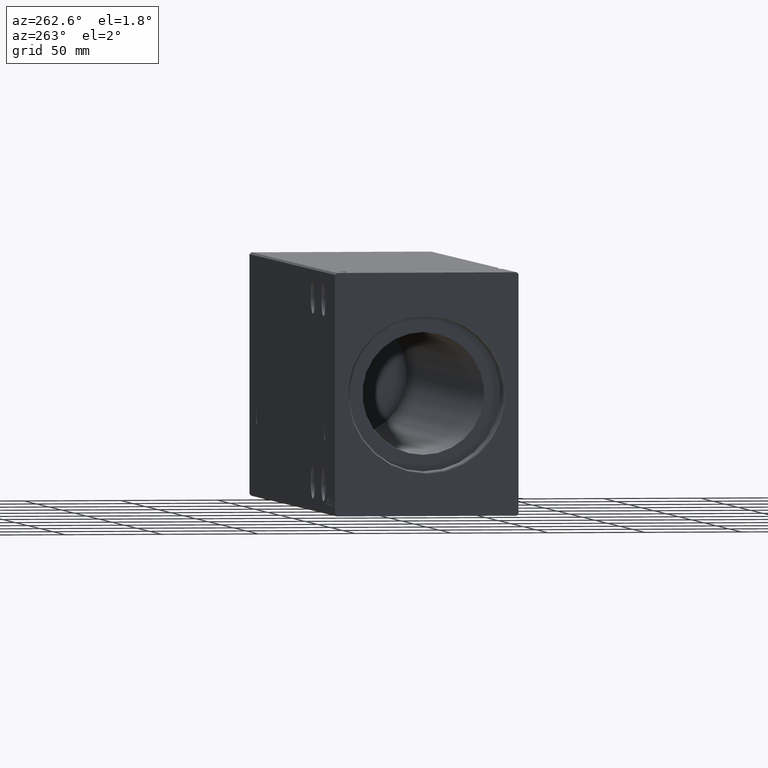
[diagram: clean part render]
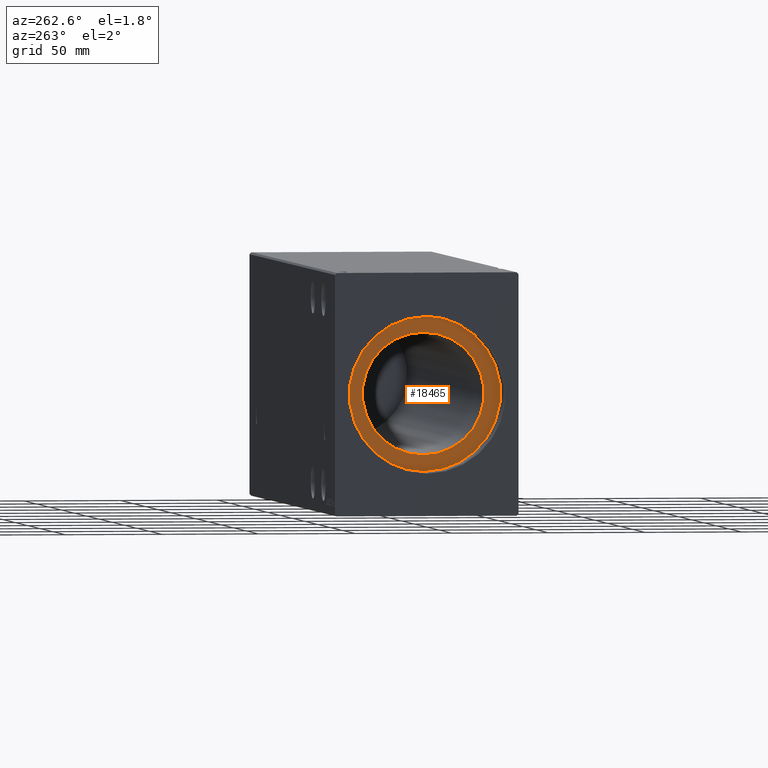
[diagram: same view with one face highlighted and labeled with its STEP entity id]
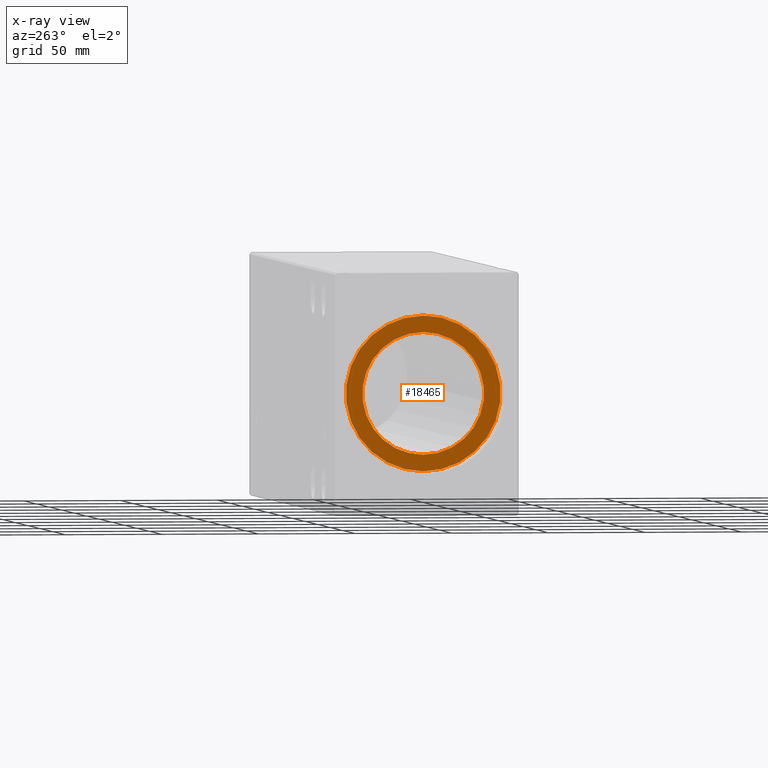
[diagram: x-ray of the same camera — body ghosted, the highlighted face saturated]
A machine part, auxiliary view. The second image highlights one B-rep face of the part: STEP entity #18465.
The next image is the same camera in x-ray: the body ghosted, the highlighted face saturated — about 0% of this face is hidden behind the body in this view.
In plain terms, the highlighted planar face has unit normal (-1, 0, 0).
Its self-contained STEP definition (entity closure, byte-faithful):
#2246 = ORIENTED_EDGE ( 'NONE', *, *, #28022, .F. ) ;
#2355 = CIRCLE ( 'NONE', #25432, 31.50000000000000000 ) ;
#4510 = DIRECTION ( 'NONE',  ( 0.000000000000000000, 0.000000000000000000, 1.000000000000000000 ) ) ;
#8304 = EDGE_CURVE ( 'NONE', #17586, #31667, #2355, .T. ) ;
#8354 = CARTESIAN_POINT ( 'NONE',  ( 14.00000000000001243, 3.857637417314162689E-15, -31.50000000000000000 ) ) ;
#8434 = DIRECTION ( 'NONE',  ( -1.000000000000000000, 0.000000000000000000, 0.000000000000000000 ) ) ;
#8858 = CARTESIAN_POINT ( 'NONE',  ( 14.00000000000000000, 0.000000000000000000, 0.000000000000000000 ) ) ;
#9059 = DIRECTION ( 'NONE',  ( 0.000000000000000000, 0.000000000000000000, 1.000000000000000000 ) ) ;
#9255 = DIRECTION ( 'NONE',  ( -1.000000000000000000, 0.000000000000000000, 0.000000000000000000 ) ) ;
#9878 = CARTESIAN_POINT ( 'NONE',  ( 14.00000000000000000, 4.898587196589413026E-15, -40.00000000000000000 ) ) ;
#11285 = DIRECTION ( 'NONE',  ( -1.000000000000000000, 0.000000000000000000, 0.000000000000000000 ) ) ;
#11724 = DIRECTION ( 'NONE',  ( 0.000000000000000000, 0.000000000000000000, 1.000000000000000000 ) ) ;
#12969 = DIRECTION ( 'NONE',  ( -1.000000000000000000, 0.000000000000000000, 0.000000000000000000 ) ) ;
#14682 = CIRCLE ( 'NONE', #37113, 40.00000000000000000 ) ;
#15761 = ORIENTED_EDGE ( 'NONE', *, *, #8304, .F. ) ;
#15959 = DIRECTION ( 'NONE',  ( 0.000000000000000000, 0.000000000000000000, 1.000000000000000000 ) ) ;
#17420 = EDGE_LOOP ( 'NONE', ( #2246, #15761 ) ) ;
#17586 = VERTEX_POINT ( 'NONE', #8354 ) ;
#17857 = ORIENTED_EDGE ( 'NONE', *, *, #19681, .T. ) ;
#18316 = DIRECTION ( 'NONE',  ( -1.000000000000000000, 0.000000000000000000, 0.000000000000000000 ) ) ;
#18413 = FACE_BOUND ( 'NONE', #17420, .T. ) ;
#18465 = ADVANCED_FACE ( 'NONE', ( #18413, #31385 ), #41172, .T. ) ;
#18473 = EDGE_LOOP ( 'NONE', ( #17857, #39286 ) ) ;
#19681 = EDGE_CURVE ( 'NONE', #22795, #39337, #14682, .T. ) ;
#20254 = CARTESIAN_POINT ( 'NONE',  ( 14.00000000000000000, 0.000000000000000000, 0.000000000000000000 ) ) ;
#20650 = CARTESIAN_POINT ( 'NONE',  ( 14.00000000000001243, 0.000000000000000000, 0.000000000000000000 ) ) ;
#22281 = CIRCLE ( 'NONE', #39965, 40.00000000000000000 ) ;
#22795 = VERTEX_POINT ( 'NONE', #26464 ) ;
#22810 = AXIS2_PLACEMENT_3D ( 'NONE', #8858, #8434, #9059 ) ;
#22834 = DIRECTION ( 'NONE',  ( 0.000000000000000000, 0.000000000000000000, 1.000000000000000000 ) ) ;
#25432 = AXIS2_PLACEMENT_3D ( 'NONE', #35310, #12969, #15959 ) ;
#26464 = CARTESIAN_POINT ( 'NONE',  ( 14.00000000000000000, 0.000000000000000000, 40.00000000000000000 ) ) ;
#27848 = CIRCLE ( 'NONE', #38689, 31.50000000000000000 ) ;
#28022 = EDGE_CURVE ( 'NONE', #31667, #17586, #27848, .T. ) ;
#31385 = FACE_OUTER_BOUND ( 'NONE', #18473, .T. ) ;
#31667 = VERTEX_POINT ( 'NONE', #39661 ) ;
#32630 = CARTESIAN_POINT ( 'NONE',  ( 14.00000000000000000, 0.000000000000000000, 0.000000000000000000 ) ) ;
#35310 = CARTESIAN_POINT ( 'NONE',  ( 14.00000000000001243, 0.000000000000000000, 0.000000000000000000 ) ) ;
#37113 = AXIS2_PLACEMENT_3D ( 'NONE', #20254, #18316, #11724 ) ;
#38689 = AXIS2_PLACEMENT_3D ( 'NONE', #20650, #11285, #4510 ) ;
#39286 = ORIENTED_EDGE ( 'NONE', *, *, #39413, .T. ) ;
#39337 = VERTEX_POINT ( 'NONE', #9878 ) ;
#39413 = EDGE_CURVE ( 'NONE', #39337, #22795, #22281, .T. ) ;
#39661 = CARTESIAN_POINT ( 'NONE',  ( 14.00000000000001243, 0.000000000000000000, 31.50000000000000000 ) ) ;
#39965 = AXIS2_PLACEMENT_3D ( 'NONE', #32630, #9255, #22834 ) ;
#41172 = PLANE ( 'NONE',  #22810 ) ;